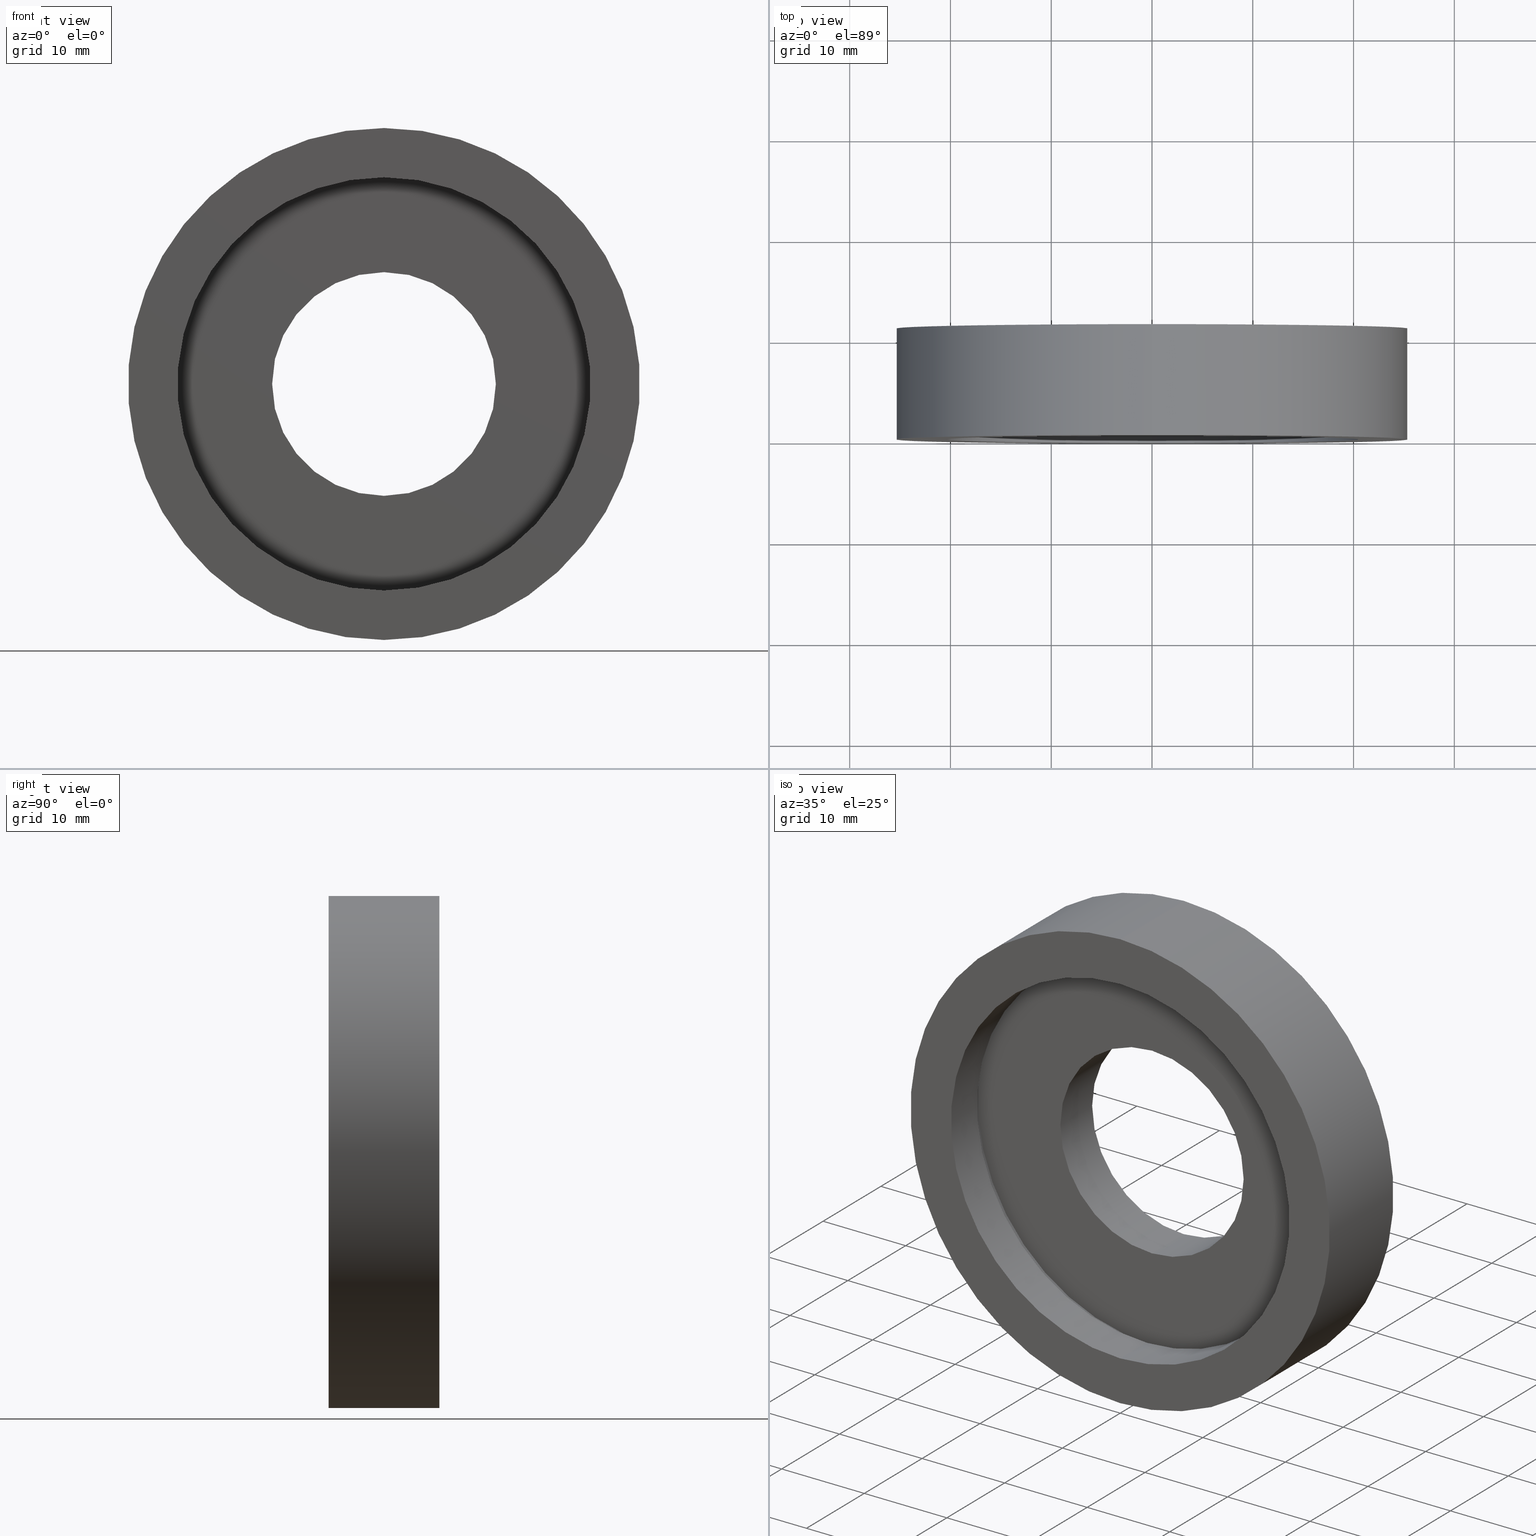
[diagram: canonical four-view strip — front | top / right | iso, engineering-drawing reading convention]
A machine part, canonical four-view strip (front | top / right | iso — engineering-drawing reading convention). The complete STEP part file that produces these views, byte-faithful:
ISO-10303-21;
HEADER;
FILE_DESCRIPTION (( 'STEP AP214' ),
    '1' );
FILE_NAME ('504045.STEP',
    '2019-10-09T06:09:52',
    ( 'user' ),
    ( '΢���й�' ),
    'SwSTEP 2.0',
    'SolidWorks 2016',
    '' );
FILE_SCHEMA (( 'AUTOMOTIVE_DESIGN' ));
ENDSEC;

DATA;
#1 = DIRECTION ( 'NONE',  ( 0.0000000000000000000, 0.0000000000000000000, 1.000000000000000000 ) ) ;
#2 = STYLED_ITEM ( 'NONE', ( #430 ), #5 ) ;
#3 = ADVANCED_FACE ( 'NONE', ( #155 ), #338, .T. ) ;
#4 = ADVANCED_FACE ( 'NONE', ( #252 ), #121, .F. ) ;
#5 = ADVANCED_FACE ( 'NONE', ( #68 ), #136, .F. ) ;
#6 = APPLICATION_CONTEXT ( 'automotive_design' ) ;
#7 =( NAMED_UNIT ( * ) SI_UNIT ( $, .STERADIAN. ) SOLID_ANGLE_UNIT ( ) );
#8 = CYLINDRICAL_SURFACE ( 'NONE', #61, 11.10000000000000500 ) ;
#9 = LINE ( 'NONE', #397, #364 ) ;
#10 = DIRECTION ( 'NONE',  ( 0.0000000000000000000, -1.000000000000000000, 0.0000000000000000000 ) ) ;
#11 = CARTESIAN_POINT ( 'NONE',  ( 2.584004746200916200E-015, 5.499999999999998200, -21.10000000000000900 ) ) ;
#12 = PRESENTATION_LAYER_ASSIGNMENT (  '', '', ( #427 ) ) ;
#13 = ADVANCED_FACE ( 'NONE', ( #104, #371 ), #147, .F. ) ;
#14 = CARTESIAN_POINT ( 'NONE',  ( 0.0000000000000000000, 60.02082041425541100, 0.0000000000000000000 ) ) ;
#15 = ORIENTED_EDGE ( 'NONE', *, *, #139, .F. ) ;
#16 = DIRECTION ( 'NONE',  ( -0.0000000000000000000, 1.000000000000000000, -0.0000000000000000000 ) ) ;
#17 = DIRECTION ( 'NONE',  ( -0.0000000000000000000, 1.000000000000000000, 0.0000000000000000000 ) ) ;
#18 = DIRECTION ( 'NONE',  ( 0.0000000000000000000, 0.0000000000000000000, 1.000000000000000000 ) ) ;
#19 = CIRCLE ( 'NONE', #52, 11.10000000000000700 ) ;
#20 = COLOUR_RGB ( '',1.000000000000000000, 1.000000000000000000, 1.000000000000000000 ) ;
#21 = VERTEX_POINT ( 'NONE', #384 ) ;
#22 =( GEOMETRIC_REPRESENTATION_CONTEXT ( 3 ) GLOBAL_UNCERTAINTY_ASSIGNED_CONTEXT ( ( #360 ) ) GLOBAL_UNIT_ASSIGNED_CONTEXT ( ( #152, #273, #271 ) ) REPRESENTATION_CONTEXT ( 'NONE', 'WORKASPACE' ) );
#23 = AXIS2_PLACEMENT_3D ( 'NONE', #37, #196, #148 ) ;
#24 = VECTOR ( 'NONE', #281, 1000.000000000000000 ) ;
#25 = ORIENTED_EDGE ( 'NONE', *, *, #263, .F. ) ;
#26 = AXIS2_PLACEMENT_3D ( 'NONE', #393, #123, #116 ) ;
#27 = VECTOR ( 'NONE', #204, 1000.000000000000000 ) ;
#28 = CARTESIAN_POINT ( 'NONE',  ( 3.110602869834277300E-015, 10.99999999999999600, -25.40000000000000200 ) ) ;
#29 = EDGE_CURVE ( 'NONE', #130, #34, #366, .T. ) ;
#30 = FILL_AREA_STYLE_COLOUR ( '', #241 ) ;
#31 = ORIENTED_EDGE ( 'NONE', *, *, #263, .T. ) ;
#32 = PLANE ( 'NONE',  #56 ) ;
#33 = DIRECTION ( 'NONE',  ( -0.0000000000000000000, 1.000000000000000000, -0.0000000000000000000 ) ) ;
#34 = VERTEX_POINT ( 'NONE', #28 ) ;
#35 = DIRECTION ( 'NONE',  ( -0.0000000000000000000, 1.000000000000000000, -0.0000000000000000000 ) ) ;
#36 = SURFACE_STYLE_USAGE ( .BOTH. , #108 ) ;
#37 = CARTESIAN_POINT ( 'NONE',  ( 0.0000000000000000000, 0.0000000000000000000, 0.0000000000000000000 ) ) ;
#38 = AXIS2_PLACEMENT_3D ( 'NONE', #310, #309, #188 ) ;
#39 = EDGE_CURVE ( 'NONE', #433, #313, #342, .T. ) ;
#40 = PLANE ( 'NONE',  #272 ) ;
#41 = DIRECTION ( 'NONE',  ( 0.0000000000000000000, 0.0000000000000000000, 1.000000000000000000 ) ) ;
#42 = AXIS2_PLACEMENT_3D ( 'NONE', #227, #264, #336 ) ;
#43 =( NAMED_UNIT ( * ) SI_UNIT ( $, .STERADIAN. ) SOLID_ANGLE_UNIT ( ) );
#44 = ORIENTED_EDGE ( 'NONE', *, *, #390, .F. ) ;
#45 = LINE ( 'NONE', #69, #24 ) ;
#46 = ORIENTED_EDGE ( 'NONE', *, *, #66, .F. ) ;
#47 = EDGE_LOOP ( 'NONE', ( #73, #304, #216, #31 ) ) ;
#48 = DIRECTION ( 'NONE',  ( -0.0000000000000000000, 1.000000000000000000, -0.0000000000000000000 ) ) ;
#49 = DIRECTION ( 'NONE',  ( -0.0000000000000000000, 1.000000000000000000, -0.0000000000000000000 ) ) ;
#50 = CARTESIAN_POINT ( 'NONE',  ( 1.359357947053563100E-015, 10.99999999999999600, -11.10000000000000700 ) ) ;
#51 = CARTESIAN_POINT ( 'NONE',  ( 0.0000000000000000000, 10.99999999999999600, 0.0000000000000000000 ) ) ;
#52 = AXIS2_PLACEMENT_3D ( 'NONE', #51, #399, #18 ) ;
#53 = CIRCLE ( 'NONE', #213, 20.50000000000000700 ) ;
#54 = FILL_AREA_STYLE ('',( #164 ) ) ;
#55 =( LENGTH_UNIT ( ) NAMED_UNIT ( * ) SI_UNIT ( .MILLI., .METRE. ) );
#56 = AXIS2_PLACEMENT_3D ( 'NONE', #107, #119, #198 ) ;
#57 = AXIS2_PLACEMENT_3D ( 'NONE', #140, #353, #345 ) ;
#58 = ORIENTED_EDGE ( 'NONE', *, *, #431, .F. ) ;
#59 = AXIS2_PLACEMENT_3D ( 'NONE', #157, #153, #239 ) ;
#60 = DIRECTION ( 'NONE',  ( 0.0000000000000000000, 0.0000000000000000000, 1.000000000000000000 ) ) ;
#61 = AXIS2_PLACEMENT_3D ( 'NONE', #317, #154, #351 ) ;
#62 = AXIS2_PLACEMENT_3D ( 'NONE', #340, #207, #63 ) ;
#63 = DIRECTION ( 'NONE',  ( 0.0000000000000000000, 0.0000000000000000000, 1.000000000000000000 ) ) ;
#64 =( NAMED_UNIT ( * ) SI_UNIT ( $, .STERADIAN. ) SOLID_ANGLE_UNIT ( ) );
#65 = CARTESIAN_POINT ( 'NONE',  ( 0.0000000000000000000, 5.499999999999998200, 0.0000000000000000000 ) ) ;
#66 = EDGE_CURVE ( 'NONE', #192, #173, #9, .T. ) ;
#67 = CARTESIAN_POINT ( 'NONE',  ( 0.0000000000000000000, 10.99999999999999600, 0.0000000000000000000 ) ) ;
#68 = FACE_OUTER_BOUND ( 'NONE', #386, .T. ) ;
#69 = CARTESIAN_POINT ( 'NONE',  ( 0.0000000000000000000, 60.02082041425541100, 21.10000000000000900 ) ) ;
#70 =( NAMED_UNIT ( * ) SI_UNIT ( $, .STERADIAN. ) SOLID_ANGLE_UNIT ( ) );
#71 = SURFACE_STYLE_FILL_AREA ( #54 ) ;
#72 = EDGE_LOOP ( 'NONE', ( #58, #238, #156, #46 ) ) ;
#73 = ORIENTED_EDGE ( 'NONE', *, *, #412, .F. ) ;
#74 = CARTESIAN_POINT ( 'NONE',  ( 20.50000000000000700, 4.499999999999999100, 0.0000000000000000000 ) ) ;
#75 = MANIFOLD_SOLID_BREP ( '��ת1', #308 ) ;
#76 = PRODUCT_DEFINITION ( 'δ֪', '', #83, #291 ) ;
#77 = MECHANICAL_DESIGN_GEOMETRIC_PRESENTATION_REPRESENTATION (  '', ( #427 ), #318 ) ;
#78 = DIRECTION ( 'NONE',  ( 0.0000000000000000000, 0.0000000000000000000, 1.000000000000000000 ) ) ;
#79 = SHAPE_DEFINITION_REPRESENTATION ( #403, #411 ) ;
#80 = FACE_OUTER_BOUND ( 'NONE', #328, .T. ) ;
#81 = CIRCLE ( 'NONE', #42, 25.40000000000000200 ) ;
#82 = SURFACE_STYLE_USAGE ( .BOTH. , #105 ) ;
#83 = PRODUCT_DEFINITION_FORMATION_WITH_SPECIFIED_SOURCE ( '�κ�', '', #374, .NOT_KNOWN. ) ;
#84 = AXIS2_PLACEMENT_3D ( 'NONE', #209, #362, #319 ) ;
#85 = DIRECTION ( 'NONE',  ( 0.0000000000000000000, 0.0000000000000000000, 1.000000000000000000 ) ) ;
#86 = VECTOR ( 'NONE', #242, 1000.000000000000000 ) ;
#87 = EDGE_LOOP ( 'NONE', ( #161, #15 ) ) ;
#88 =( GEOMETRIC_REPRESENTATION_CONTEXT ( 3 ) GLOBAL_UNCERTAINTY_ASSIGNED_CONTEXT ( ( #333 ) ) GLOBAL_UNIT_ASSIGNED_CONTEXT ( ( #246, #284, #396 ) ) REPRESENTATION_CONTEXT ( 'NONE', 'WORKASPACE' ) );
#89 = ORIENTED_EDGE ( 'NONE', *, *, #390, .T. ) ;
#90 = DIRECTION ( 'NONE',  ( -0.0000000000000000000, 1.000000000000000000, -0.0000000000000000000 ) ) ;
#91 = LINE ( 'NONE', #208, #86 ) ;
#92 = SURFACE_STYLE_FILL_AREA ( #185 ) ;
#93 = CARTESIAN_POINT ( 'NONE',  ( 3.110602869834277300E-015, 60.02082041425541100, -25.40000000000000200 ) ) ;
#94 = ORIENTED_EDGE ( 'NONE', *, *, #370, .T. ) ;
#95 = CARTESIAN_POINT ( 'NONE',  ( 0.0000000000000000000, 5.499999999999998200, 11.10000000000000500 ) ) ;
#96 = CARTESIAN_POINT ( 'NONE',  ( 0.0000000000000000000, 4.499999999999997300, 0.0000000000000000000 ) ) ;
#97 = MECHANICAL_DESIGN_GEOMETRIC_PRESENTATION_REPRESENTATION (  '', ( #2 ), #221 ) ;
#98 = ORIENTED_EDGE ( 'NONE', *, *, #370, .F. ) ;
#99 = CARTESIAN_POINT ( 'NONE',  ( 25.40000000000000200, -3.000384657911011900E-016, 0.0000000000000000000 ) ) ;
#100 = STYLED_ITEM ( 'NONE', ( #151 ), #75 ) ;
#101 = COLOUR_RGB ( '',1.000000000000000000, 1.000000000000000000, 1.000000000000000000 ) ;
#102 = EDGE_LOOP ( 'NONE', ( #223, #94 ) ) ;
#103 = FACE_OUTER_BOUND ( 'NONE', #102, .T. ) ;
#104 = FACE_OUTER_BOUND ( 'NONE', #289, .T. ) ;
#105 = SURFACE_SIDE_STYLE ('',( #71 ) ) ;
#106 = AXIS2_PLACEMENT_3D ( 'NONE', #67, #195, #41 ) ;
#107 = CARTESIAN_POINT ( 'NONE',  ( 11.10000000000000700, 10.99999999999999800, 0.0000000000000000000 ) ) ;
#108 = SURFACE_SIDE_STYLE ('',( #92 ) ) ;
#109 = PRESENTATION_LAYER_ASSIGNMENT (  '', '', ( #2 ) ) ;
#110 = DIRECTION ( 'NONE',  ( 0.0000000000000000000, 0.0000000000000000000, 1.000000000000000000 ) ) ;
#111 = CARTESIAN_POINT ( 'NONE',  ( 3.110602869834277300E-015, 0.0000000000000000000, -25.40000000000000200 ) ) ;
#112 = PRESENTATION_LAYER_ASSIGNMENT (  '', '', ( #324 ) ) ;
#113 = ORIENTED_EDGE ( 'NONE', *, *, #405, .F. ) ;
#114 = PRODUCT_CONTEXT ( 'NONE', #6, 'mechanical' ) ;
#115 = CARTESIAN_POINT ( 'NONE',  ( 0.0000000000000000000, 10.99999999999999600, 11.10000000000000700 ) ) ;
#116 = DIRECTION ( 'NONE',  ( 0.0000000000000000000, 0.0000000000000000000, 1.000000000000000000 ) ) ;
#117 = AXIS2_PLACEMENT_3D ( 'NONE', #361, #163, #60 ) ;
#118 = UNCERTAINTY_MEASURE_WITH_UNIT (LENGTH_MEASURE( 1.000000000000000100E-005 ), #55, 'distance_accuracy_value', 'NONE');
#119 = DIRECTION ( 'NONE',  ( 0.0000000000000000000, -1.000000000000000000, 0.0000000000000000000 ) ) ;
#120 = CIRCLE ( 'NONE', #106, 25.40000000000000200 ) ;
#121 = CYLINDRICAL_SURFACE ( 'NONE', #125, 11.10000000000000500 ) ;
#122 = VERTEX_POINT ( 'NONE', #406 ) ;
#123 = DIRECTION ( 'NONE',  ( -0.0000000000000000000, 1.000000000000000000, -0.0000000000000000000 ) ) ;
#124 = AXIS2_PLACEMENT_3D ( 'NONE', #226, #402, #394 ) ;
#125 = AXIS2_PLACEMENT_3D ( 'NONE', #14, #16, #222 ) ;
#126 = EDGE_LOOP ( 'NONE', ( #296, #391, #210, #132 ) ) ;
#127 =( LENGTH_UNIT ( ) NAMED_UNIT ( * ) SI_UNIT ( .MILLI., .METRE. ) );
#128 = DIRECTION ( 'NONE',  ( -0.0000000000000000000, 1.000000000000000000, -0.0000000000000000000 ) ) ;
#129 = EDGE_CURVE ( 'NONE', #408, #244, #260, .T. ) ;
#130 = VERTEX_POINT ( 'NONE', #111 ) ;
#131 = ORIENTED_EDGE ( 'NONE', *, *, #158, .T. ) ;
#132 = ORIENTED_EDGE ( 'NONE', *, *, #165, .T. ) ;
#133 = EDGE_CURVE ( 'NONE', #192, #21, #350, .T. ) ;
#134 = SURFACE_STYLE_USAGE ( .BOTH. , #247 ) ;
#135 = DIRECTION ( 'NONE',  ( 0.0000000000000000000, 0.0000000000000000000, 1.000000000000000000 ) ) ;
#136 = CYLINDRICAL_SURFACE ( 'NONE', #84, 20.50000000000000700 ) ;
#137 = LINE ( 'NONE', #401, #348 ) ;
#138 = PRESENTATION_LAYER_ASSIGNMENT (  '', '', ( #217 ) ) ;
#139 = EDGE_CURVE ( 'NONE', #122, #315, #53, .T. ) ;
#140 = CARTESIAN_POINT ( 'NONE',  ( 0.0000000000000000000, 0.0000000000000000000, 0.0000000000000000000 ) ) ;
#141 = DIRECTION ( 'NONE',  ( 0.0000000000000000000, 0.0000000000000000000, 1.000000000000000000 ) ) ;
#142 = DIRECTION ( 'NONE',  ( -0.0000000000000000000, 1.000000000000000000, -0.0000000000000000000 ) ) ;
#143 = ADVANCED_FACE ( 'NONE', ( #413, #103 ), #32, .F. ) ;
#144 = CARTESIAN_POINT ( 'NONE',  ( 0.0000000000000000000, 0.0000000000000000000, 25.40000000000000200 ) ) ;
#145 = COLOUR_RGB ( '',1.000000000000000000, 1.000000000000000000, 1.000000000000000000 ) ;
#146 = PRODUCT_RELATED_PRODUCT_CATEGORY ( 'part', '', ( #374 ) ) ;
#147 = PLANE ( 'NONE',  #292 ) ;
#148 = DIRECTION ( 'NONE',  ( 0.0000000000000000000, 0.0000000000000000000, 1.000000000000000000 ) ) ;
#149 = SURFACE_STYLE_FILL_AREA ( #205 ) ;
#150 = ORIENTED_EDGE ( 'NONE', *, *, #129, .T. ) ;
#151 = PRESENTATION_STYLE_ASSIGNMENT (( #134 ) ) ;
#152 =( LENGTH_UNIT ( ) NAMED_UNIT ( * ) SI_UNIT ( .MILLI., .METRE. ) );
#153 = DIRECTION ( 'NONE',  ( -0.0000000000000000000, 1.000000000000000000, -0.0000000000000000000 ) ) ;
#154 = DIRECTION ( 'NONE',  ( -0.0000000000000000000, 1.000000000000000000, -0.0000000000000000000 ) ) ;
#155 = FACE_OUTER_BOUND ( 'NONE', #220, .T. ) ;
#156 = ORIENTED_EDGE ( 'NONE', *, *, #285, .T. ) ;
#157 = CARTESIAN_POINT ( 'NONE',  ( 0.0000000000000000000, 4.499999999999997300, 0.0000000000000000000 ) ) ;
#158 = EDGE_CURVE ( 'NONE', #305, #290, #202, .T. ) ;
#159 = EDGE_LOOP ( 'NONE', ( #25, #178 ) ) ;
#160 =( NAMED_UNIT ( * ) PLANE_ANGLE_UNIT ( ) SI_UNIT ( $, .RADIAN. ) );
#161 = ORIENTED_EDGE ( 'NONE', *, *, #240, .F. ) ;
#162 = FILL_AREA_STYLE_COLOUR ( '', #20 ) ;
#163 = DIRECTION ( 'NONE',  ( -0.0000000000000000000, 1.000000000000000000, -0.0000000000000000000 ) ) ;
#164 = FILL_AREA_STYLE_COLOUR ( '', #101 ) ;
#165 = EDGE_CURVE ( 'NONE', #173, #307, #416, .T. ) ;
#166 = PRESENTATION_STYLE_ASSIGNMENT (( #428 ) ) ;
#167 = ORIENTED_EDGE ( 'NONE', *, *, #431, .T. ) ;
#168 = APPLICATION_CONTEXT ( 'automotive_design' ) ;
#169 = ORIENTED_EDGE ( 'NONE', *, *, #133, .T. ) ;
#170 = ORIENTED_EDGE ( 'NONE', *, *, #240, .T. ) ;
#171 = CARTESIAN_POINT ( 'NONE',  ( 0.0000000000000000000, 10.99999999999999600, 25.40000000000000200 ) ) ;
#172 = EDGE_CURVE ( 'NONE', #130, #433, #81, .T. ) ;
#173 = VERTEX_POINT ( 'NONE', #115 ) ;
#174 = ORIENTED_EDGE ( 'NONE', *, *, #139, .T. ) ;
#175 = SURFACE_STYLE_USAGE ( .BOTH. , #432 ) ;
#176 = CYLINDRICAL_SURFACE ( 'NONE', #332, 21.10000000000000900 ) ;
#177 = AXIS2_PLACEMENT_3D ( 'NONE', #65, #237, #248 ) ;
#178 = ORIENTED_EDGE ( 'NONE', *, *, #344, .F. ) ;
#179 = CARTESIAN_POINT ( 'NONE',  ( 0.0000000000000000000, 10.99999999999999600, 0.0000000000000000000 ) ) ;
#180 = APPLICATION_PROTOCOL_DEFINITION ( 'draft international standard', 'automotive_design', 1998, #168 ) ;
#181 = CIRCLE ( 'NONE', #38, 25.40000000000000200 ) ;
#182 = ORIENTED_EDGE ( 'NONE', *, *, #412, .T. ) ;
#183 = CARTESIAN_POINT ( 'NONE',  ( 0.0000000000000000000, 60.02082041425541100, 25.40000000000000200 ) ) ;
#184 =( LENGTH_UNIT ( ) NAMED_UNIT ( * ) SI_UNIT ( .MILLI., .METRE. ) );
#185 = FILL_AREA_STYLE ('',( #30 ) ) ;
#186 = UNCERTAINTY_MEASURE_WITH_UNIT (LENGTH_MEASURE( 1.000000000000000100E-005 ), #184, 'distance_accuracy_value', 'NONE');
#187 = EDGE_LOOP ( 'NONE', ( #199, #182, #302, #113 ) ) ;
#188 = DIRECTION ( 'NONE',  ( 0.0000000000000000000, 0.0000000000000000000, 1.000000000000000000 ) ) ;
#189 = FILL_AREA_STYLE_COLOUR ( '', #419 ) ;
#190 = CIRCLE ( 'NONE', #177, 11.10000000000000500 ) ;
#191 = EDGE_LOOP ( 'NONE', ( #131, #378 ) ) ;
#192 = VERTEX_POINT ( 'NONE', #95 ) ;
#193 = EDGE_CURVE ( 'NONE', #313, #34, #120, .T. ) ;
#194 = AXIS2_PLACEMENT_3D ( 'NONE', #426, #49, #258 ) ;
#195 = DIRECTION ( 'NONE',  ( -0.0000000000000000000, 1.000000000000000000, -0.0000000000000000000 ) ) ;
#196 = DIRECTION ( 'NONE',  ( -0.0000000000000000000, 1.000000000000000000, -0.0000000000000000000 ) ) ;
#197 = COLOUR_RGB ( '',1.000000000000000000, 1.000000000000000000, 1.000000000000000000 ) ;
#198 = DIRECTION ( 'NONE',  ( 0.0000000000000000000, -0.0000000000000000000, -1.000000000000000000 ) ) ;
#199 = ORIENTED_EDGE ( 'NONE', *, *, #314, .F. ) ;
#200 = CARTESIAN_POINT ( 'NONE',  ( 0.0000000000000000000, 5.499999999999998200, 0.0000000000000000000 ) ) ;
#201 = PLANE ( 'NONE',  #287 ) ;
#202 = CIRCLE ( 'NONE', #59, 21.10000000000000900 ) ;
#203 = EDGE_LOOP ( 'NONE', ( #269, #299, #261, #256 ) ) ;
#204 = DIRECTION ( 'NONE',  ( -0.0000000000000000000, 1.000000000000000000, -0.0000000000000000000 ) ) ;
#205 = FILL_AREA_STYLE ('',( #162 ) ) ;
#206 = LINE ( 'NONE', #279, #429 ) ;
#207 = DIRECTION ( 'NONE',  ( -0.0000000000000000000, 1.000000000000000000, -0.0000000000000000000 ) ) ;
#208 = CARTESIAN_POINT ( 'NONE',  ( 1.359357947053562700E-015, 60.02082041425541100, -11.10000000000000500 ) ) ;
#209 = CARTESIAN_POINT ( 'NONE',  ( 0.0000000000000000000, 60.02082041425541100, 0.0000000000000000000 ) ) ;
#210 = ORIENTED_EDGE ( 'NONE', *, *, #66, .T. ) ;
#211 = FILL_AREA_STYLE_COLOUR ( '', #197 ) ;
#212 = CARTESIAN_POINT ( 'NONE',  ( 21.10000000000000900, 5.499999999999998200, 0.0000000000000000000 ) ) ;
#213 = AXIS2_PLACEMENT_3D ( 'NONE', #214, #35, #78 ) ;
#214 = CARTESIAN_POINT ( 'NONE',  ( 0.0000000000000000000, 4.499999999999997300, 0.0000000000000000000 ) ) ;
#215 = FACE_OUTER_BOUND ( 'NONE', #159, .T. ) ;
#216 = ORIENTED_EDGE ( 'NONE', *, *, #405, .T. ) ;
#217 = STYLED_ITEM ( 'NONE', ( #230 ), #4 ) ;
#218 =( NAMED_UNIT ( * ) PLANE_ANGLE_UNIT ( ) SI_UNIT ( $, .RADIAN. ) );
#219 = CIRCLE ( 'NONE', #117, 20.50000000000000700 ) ;
#220 = EDGE_LOOP ( 'NONE', ( #349, #325, #225, #98 ) ) ;
#221 =( GEOMETRIC_REPRESENTATION_CONTEXT ( 3 ) GLOBAL_UNCERTAINTY_ASSIGNED_CONTEXT ( ( #234 ) ) GLOBAL_UNIT_ASSIGNED_CONTEXT ( ( #381, #283, #43 ) ) REPRESENTATION_CONTEXT ( 'NONE', 'WORKASPACE' ) );
#222 = DIRECTION ( 'NONE',  ( 0.0000000000000000000, 0.0000000000000000000, 1.000000000000000000 ) ) ;
#223 = ORIENTED_EDGE ( 'NONE', *, *, #193, .T. ) ;
#224 = MECHANICAL_DESIGN_GEOMETRIC_PRESENTATION_REPRESENTATION (  '', ( #324 ), #22 ) ;
#225 = ORIENTED_EDGE ( 'NONE', *, *, #39, .T. ) ;
#226 = CARTESIAN_POINT ( 'NONE',  ( 0.0000000000000000000, 0.0000000000000000000, 0.0000000000000000000 ) ) ;
#227 = CARTESIAN_POINT ( 'NONE',  ( 0.0000000000000000000, 0.0000000000000000000, 0.0000000000000000000 ) ) ;
#228 = AXIS2_PLACEMENT_3D ( 'NONE', #200, #142, #110 ) ;
#229 = CIRCLE ( 'NONE', #347, 21.10000000000000900 ) ;
#230 = PRESENTATION_STYLE_ASSIGNMENT (( #36 ) ) ;
#231 = CARTESIAN_POINT ( 'NONE',  ( 0.0000000000000000000, 5.499999999999998200, 0.0000000000000000000 ) ) ;
#232 = DIRECTION ( 'NONE',  ( -0.0000000000000000000, 1.000000000000000000, -0.0000000000000000000 ) ) ;
#233 = APPLICATION_PROTOCOL_DEFINITION ( 'draft international standard', 'automotive_design', 1998, #6 ) ;
#234 = UNCERTAINTY_MEASURE_WITH_UNIT (LENGTH_MEASURE( 1.000000000000000100E-005 ), #381, 'distance_accuracy_value', 'NONE');
#235 = MECHANICAL_DESIGN_GEOMETRIC_PRESENTATION_REPRESENTATION (  '', ( #245 ), #254 ) ;
#236 = CYLINDRICAL_SURFACE ( 'NONE', #383, 21.10000000000000900 ) ;
#237 = DIRECTION ( 'NONE',  ( -0.0000000000000000000, 1.000000000000000000, -0.0000000000000000000 ) ) ;
#238 = ORIENTED_EDGE ( 'NONE', *, *, #346, .T. ) ;
#239 = DIRECTION ( 'NONE',  ( 0.0000000000000000000, 0.0000000000000000000, 1.000000000000000000 ) ) ;
#240 = EDGE_CURVE ( 'NONE', #315, #122, #219, .T. ) ;
#241 = COLOUR_RGB ( '',1.000000000000000000, 1.000000000000000000, 1.000000000000000000 ) ;
#242 = DIRECTION ( 'NONE',  ( -0.0000000000000000000, 1.000000000000000000, -0.0000000000000000000 ) ) ;
#243 = FILL_AREA_STYLE_COLOUR ( '', #145 ) ;
#244 = VERTEX_POINT ( 'NONE', #358 ) ;
#245 = STYLED_ITEM ( 'NONE', ( #409 ), #411 ) ;
#246 =( LENGTH_UNIT ( ) NAMED_UNIT ( * ) SI_UNIT ( .MILLI., .METRE. ) );
#247 = SURFACE_SIDE_STYLE ('',( #357 ) ) ;
#248 = DIRECTION ( 'NONE',  ( 0.0000000000000000000, 0.0000000000000000000, 1.000000000000000000 ) ) ;
#249 = CARTESIAN_POINT ( 'NONE',  ( 0.0000000000000000000, 4.499999999999997300, 21.10000000000000900 ) ) ;
#250 = FACE_BOUND ( 'NONE', #282, .T. ) ;
#251 = EDGE_LOOP ( 'NONE', ( #330, #377 ) ) ;
#252 = FACE_OUTER_BOUND ( 'NONE', #126, .T. ) ;
#253 =( NAMED_UNIT ( * ) PLANE_ANGLE_UNIT ( ) SI_UNIT ( $, .RADIAN. ) );
#254 =( GEOMETRIC_REPRESENTATION_CONTEXT ( 3 ) GLOBAL_UNCERTAINTY_ASSIGNED_CONTEXT ( ( #186 ) ) GLOBAL_UNIT_ASSIGNED_CONTEXT ( ( #184, #160, #321 ) ) REPRESENTATION_CONTEXT ( 'NONE', 'WORKASPACE' ) );
#255 = AXIS2_PLACEMENT_3D ( 'NONE', #179, #48, #85 ) ;
#256 = ORIENTED_EDGE ( 'NONE', *, *, #39, .F. ) ;
#257 = AXIS2_PLACEMENT_3D ( 'NONE', #367, #128, #417 ) ;
#258 = DIRECTION ( 'NONE',  ( 0.0000000000000000000, 0.0000000000000000000, 1.000000000000000000 ) ) ;
#259 = CIRCLE ( 'NONE', #124, 25.40000000000000200 ) ;
#260 = CIRCLE ( 'NONE', #380, 20.50000000000000700 ) ;
#261 = ORIENTED_EDGE ( 'NONE', *, *, #193, .F. ) ;
#262 =( NAMED_UNIT ( * ) PLANE_ANGLE_UNIT ( ) SI_UNIT ( $, .RADIAN. ) );
#263 = EDGE_CURVE ( 'NONE', #280, #298, #359, .T. ) ;
#264 = DIRECTION ( 'NONE',  ( -0.0000000000000000000, 1.000000000000000000, -0.0000000000000000000 ) ) ;
#265 = SURFACE_STYLE_FILL_AREA ( #277 ) ;
#266 =( GEOMETRIC_REPRESENTATION_CONTEXT ( 3 ) GLOBAL_UNCERTAINTY_ASSIGNED_CONTEXT ( ( #369 ) ) GLOBAL_UNIT_ASSIGNED_CONTEXT ( ( #127, #253, #70 ) ) REPRESENTATION_CONTEXT ( 'NONE', 'WORKASPACE' ) );
#267 = ADVANCED_FACE ( 'NONE', ( #294 ), #8, .F. ) ;
#268 = FACE_BOUND ( 'NONE', #87, .T. ) ;
#269 = ORIENTED_EDGE ( 'NONE', *, *, #355, .T. ) ;
#270 = EDGE_LOOP ( 'NONE', ( #150, #306 ) ) ;
#271 =( NAMED_UNIT ( * ) SI_UNIT ( $, .STERADIAN. ) SOLID_ANGLE_UNIT ( ) );
#272 = AXIS2_PLACEMENT_3D ( 'NONE', #74, #10, #335 ) ;
#273 =( NAMED_UNIT ( * ) PLANE_ANGLE_UNIT ( ) SI_UNIT ( $, .RADIAN. ) );
#274 = CIRCLE ( 'NONE', #23, 20.50000000000000700 ) ;
#275 = ORIENTED_EDGE ( 'NONE', *, *, #172, .F. ) ;
#276 = ORIENTED_EDGE ( 'NONE', *, *, #355, .F. ) ;
#277 = FILL_AREA_STYLE ('',( #189 ) ) ;
#278 = FACE_OUTER_BOUND ( 'NONE', #47, .T. ) ;
#279 = CARTESIAN_POINT ( 'NONE',  ( 0.0000000000000000000, 60.02082041425541100, 20.50000000000000700 ) ) ;
#280 = VERTEX_POINT ( 'NONE', #398 ) ;
#281 = DIRECTION ( 'NONE',  ( -0.0000000000000000000, 1.000000000000000000, -0.0000000000000000000 ) ) ;
#282 = EDGE_LOOP ( 'NONE', ( #169, #167 ) ) ;
#283 =( NAMED_UNIT ( * ) PLANE_ANGLE_UNIT ( ) SI_UNIT ( $, .RADIAN. ) );
#284 =( NAMED_UNIT ( * ) PLANE_ANGLE_UNIT ( ) SI_UNIT ( $, .RADIAN. ) );
#285 = EDGE_CURVE ( 'NONE', #307, #173, #19, .T. ) ;
#286 = DIRECTION ( 'NONE',  ( -0.0000000000000000000, 1.000000000000000000, -0.0000000000000000000 ) ) ;
#287 = AXIS2_PLACEMENT_3D ( 'NONE', #212, #323, #300 ) ;
#288 = DIRECTION ( 'NONE',  ( -0.0000000000000000000, 1.000000000000000000, -0.0000000000000000000 ) ) ;
#289 = EDGE_LOOP ( 'NONE', ( #276, #275 ) ) ;
#290 = VERTEX_POINT ( 'NONE', #434 ) ;
#291 = PRODUCT_DEFINITION_CONTEXT ( 'detailed design', #168, 'design' ) ;
#292 = AXIS2_PLACEMENT_3D ( 'NONE', #99, #17, #320 ) ;
#293 = SURFACE_STYLE_USAGE ( .BOTH. , #421 ) ;
#294 = FACE_OUTER_BOUND ( 'NONE', #72, .T. ) ;
#295 = SURFACE_STYLE_FILL_AREA ( #341 ) ;
#296 = ORIENTED_EDGE ( 'NONE', *, *, #346, .F. ) ;
#297 = PRESENTATION_LAYER_ASSIGNMENT (  '', '', ( #100 ) ) ;
#298 = VERTEX_POINT ( 'NONE', #11 ) ;
#299 = ORIENTED_EDGE ( 'NONE', *, *, #29, .T. ) ;
#300 = DIRECTION ( 'NONE',  ( 0.0000000000000000000, 0.0000000000000000000, 1.000000000000000000 ) ) ;
#301 = EDGE_CURVE ( 'NONE', #244, #408, #274, .T. ) ;
#302 = ORIENTED_EDGE ( 'NONE', *, *, #344, .T. ) ;
#303 = VECTOR ( 'NONE', #33, 1000.000000000000000 ) ;
#304 = ORIENTED_EDGE ( 'NONE', *, *, #158, .F. ) ;
#305 = VERTEX_POINT ( 'NONE', #249 ) ;
#306 = ORIENTED_EDGE ( 'NONE', *, *, #301, .T. ) ;
#307 = VERTEX_POINT ( 'NONE', #50 ) ;
#308 = CLOSED_SHELL ( 'NONE', ( #372, #267, #327, #415, #13, #5, #322, #407, #382, #4, #143, #3 ) ) ;
#309 = DIRECTION ( 'NONE',  ( -0.0000000000000000000, 1.000000000000000000, -0.0000000000000000000 ) ) ;
#310 = CARTESIAN_POINT ( 'NONE',  ( 0.0000000000000000000, 10.99999999999999600, 0.0000000000000000000 ) ) ;
#311 = CYLINDRICAL_SURFACE ( 'NONE', #194, 20.50000000000000700 ) ;
#312 = PRESENTATION_STYLE_ASSIGNMENT (( #175 ) ) ;
#313 = VERTEX_POINT ( 'NONE', #171 ) ;
#314 = EDGE_CURVE ( 'NONE', #290, #305, #376, .T. ) ;
#315 = VERTEX_POINT ( 'NONE', #368 ) ;
#316 = ORIENTED_EDGE ( 'NONE', *, *, #301, .F. ) ;
#317 = CARTESIAN_POINT ( 'NONE',  ( 0.0000000000000000000, 60.02082041425541100, 0.0000000000000000000 ) ) ;
#318 =( GEOMETRIC_REPRESENTATION_CONTEXT ( 3 ) GLOBAL_UNCERTAINTY_ASSIGNED_CONTEXT ( ( #389 ) ) GLOBAL_UNIT_ASSIGNED_CONTEXT ( ( #425, #218, #64 ) ) REPRESENTATION_CONTEXT ( 'NONE', 'WORKASPACE' ) );
#319 = DIRECTION ( 'NONE',  ( 0.0000000000000000000, 0.0000000000000000000, 1.000000000000000000 ) ) ;
#320 = DIRECTION ( 'NONE',  ( 0.0000000000000000000, 0.0000000000000000000, 1.000000000000000000 ) ) ;
#321 =( NAMED_UNIT ( * ) SI_UNIT ( $, .STERADIAN. ) SOLID_ANGLE_UNIT ( ) );
#322 = ADVANCED_FACE ( 'NONE', ( #268, #363 ), #40, .F. ) ;
#323 = DIRECTION ( 'NONE',  ( -0.0000000000000000000, 1.000000000000000000, 0.0000000000000000000 ) ) ;
#324 = STYLED_ITEM ( 'NONE', ( #166 ), #415 ) ;
#325 = ORIENTED_EDGE ( 'NONE', *, *, #172, .T. ) ;
#326 = FILL_AREA_STYLE ('',( #243 ) ) ;
#327 = ADVANCED_FACE ( 'NONE', ( #337 ), #176, .F. ) ;
#328 = EDGE_LOOP ( 'NONE', ( #316, #329, #174, #44 ) ) ;
#329 = ORIENTED_EDGE ( 'NONE', *, *, #410, .T. ) ;
#330 = ORIENTED_EDGE ( 'NONE', *, *, #165, .F. ) ;
#331 = CARTESIAN_POINT ( 'NONE',  ( 0.0000000000000000000, 60.02082041425541100, 0.0000000000000000000 ) ) ;
#332 = AXIS2_PLACEMENT_3D ( 'NONE', #388, #379, #135 ) ;
#333 = UNCERTAINTY_MEASURE_WITH_UNIT (LENGTH_MEASURE( 1.000000000000000100E-005 ), #246, 'distance_accuracy_value', 'NONE');
#334 = DIRECTION ( 'NONE',  ( -0.0000000000000000000, 1.000000000000000000, -0.0000000000000000000 ) ) ;
#335 = DIRECTION ( 'NONE',  ( 0.0000000000000000000, -0.0000000000000000000, -1.000000000000000000 ) ) ;
#336 = DIRECTION ( 'NONE',  ( 0.0000000000000000000, 0.0000000000000000000, 1.000000000000000000 ) ) ;
#337 = FACE_OUTER_BOUND ( 'NONE', #187, .T. ) ;
#338 = CYLINDRICAL_SURFACE ( 'NONE', #257, 25.40000000000000200 ) ;
#339 =( GEOMETRIC_REPRESENTATION_CONTEXT ( 3 ) GLOBAL_UNCERTAINTY_ASSIGNED_CONTEXT ( ( #118 ) ) GLOBAL_UNIT_ASSIGNED_CONTEXT ( ( #55, #262, #7 ) ) REPRESENTATION_CONTEXT ( 'NONE', 'WORKASPACE' ) );
#340 = CARTESIAN_POINT ( 'NONE',  ( 0.0000000000000000000, 5.499999999999998200, 0.0000000000000000000 ) ) ;
#341 = FILL_AREA_STYLE ('',( #211 ) ) ;
#342 = LINE ( 'NONE', #183, #27 ) ;
#343 = CARTESIAN_POINT ( 'NONE',  ( 0.0000000000000000000, 0.0000000000000000000, 0.0000000000000000000 ) ) ;
#344 = EDGE_CURVE ( 'NONE', #298, #280, #229, .T. ) ;
#345 = DIRECTION ( 'NONE',  ( 1.000000000000000000, 0.0000000000000000000, 0.0000000000000000000 ) ) ;
#346 = EDGE_CURVE ( 'NONE', #21, #307, #91, .T. ) ;
#347 = AXIS2_PLACEMENT_3D ( 'NONE', #231, #288, #400 ) ;
#348 = VECTOR ( 'NONE', #286, 1000.000000000000000 ) ;
#349 = ORIENTED_EDGE ( 'NONE', *, *, #29, .F. ) ;
#350 = CIRCLE ( 'NONE', #228, 11.10000000000000500 ) ;
#351 = DIRECTION ( 'NONE',  ( 0.0000000000000000000, 0.0000000000000000000, 1.000000000000000000 ) ) ;
#352 = ORIENTED_EDGE ( 'NONE', *, *, #129, .F. ) ;
#353 = DIRECTION ( 'NONE',  ( 0.0000000000000000000, 0.0000000000000000000, 1.000000000000000000 ) ) ;
#354 = DIRECTION ( 'NONE',  ( -0.0000000000000000000, 1.000000000000000000, -0.0000000000000000000 ) ) ;
#355 = EDGE_CURVE ( 'NONE', #433, #130, #259, .T. ) ;
#356 = FACE_OUTER_BOUND ( 'NONE', #203, .T. ) ;
#357 = SURFACE_STYLE_FILL_AREA ( #326 ) ;
#358 = CARTESIAN_POINT ( 'NONE',  ( 2.510525938252074900E-015, 0.0000000000000000000, -20.50000000000000700 ) ) ;
#359 = CIRCLE ( 'NONE', #62, 21.10000000000000900 ) ;
#360 = UNCERTAINTY_MEASURE_WITH_UNIT (LENGTH_MEASURE( 1.000000000000000100E-005 ), #152, 'distance_accuracy_value', 'NONE');
#361 = CARTESIAN_POINT ( 'NONE',  ( 0.0000000000000000000, 4.499999999999997300, 0.0000000000000000000 ) ) ;
#362 = DIRECTION ( 'NONE',  ( -0.0000000000000000000, 1.000000000000000000, -0.0000000000000000000 ) ) ;
#363 = FACE_OUTER_BOUND ( 'NONE', #191, .T. ) ;
#364 = VECTOR ( 'NONE', #232, 1000.000000000000000 ) ;
#365 = SURFACE_SIDE_STYLE ('',( #265 ) ) ;
#366 = LINE ( 'NONE', #93, #420 ) ;
#367 = CARTESIAN_POINT ( 'NONE',  ( 0.0000000000000000000, 60.02082041425541100, 0.0000000000000000000 ) ) ;
#368 = CARTESIAN_POINT ( 'NONE',  ( 0.0000000000000000000, 4.499999999999997300, 20.50000000000000700 ) ) ;
#369 = UNCERTAINTY_MEASURE_WITH_UNIT (LENGTH_MEASURE( 1.000000000000000100E-005 ), #127, 'distance_accuracy_value', 'NONE');
#370 = EDGE_CURVE ( 'NONE', #34, #313, #181, .T. ) ;
#371 = FACE_BOUND ( 'NONE', #270, .T. ) ;
#372 = ADVANCED_FACE ( 'NONE', ( #356 ), #404, .T. ) ;
#373 = DIRECTION ( 'NONE',  ( -0.0000000000000000000, 1.000000000000000000, -0.0000000000000000000 ) ) ;
#374 = PRODUCT ( '504045', '504045', '', ( #114 ) ) ;
#375 = DIRECTION ( 'NONE',  ( -0.0000000000000000000, 1.000000000000000000, -0.0000000000000000000 ) ) ;
#376 = CIRCLE ( 'NONE', #423, 21.10000000000000900 ) ;
#377 = ORIENTED_EDGE ( 'NONE', *, *, #285, .F. ) ;
#378 = ORIENTED_EDGE ( 'NONE', *, *, #314, .T. ) ;
#379 = DIRECTION ( 'NONE',  ( -0.0000000000000000000, 1.000000000000000000, -0.0000000000000000000 ) ) ;
#380 = AXIS2_PLACEMENT_3D ( 'NONE', #343, #373, #1 ) ;
#381 =( LENGTH_UNIT ( ) NAMED_UNIT ( * ) SI_UNIT ( .MILLI., .METRE. ) );
#382 = ADVANCED_FACE ( 'NONE', ( #215, #250 ), #201, .F. ) ;
#383 = AXIS2_PLACEMENT_3D ( 'NONE', #331, #354, #141 ) ;
#384 = CARTESIAN_POINT ( 'NONE',  ( 1.359357947053562700E-015, 5.499999999999998200, -11.10000000000000500 ) ) ;
#385 = LINE ( 'NONE', #414, #303 ) ;
#386 = EDGE_LOOP ( 'NONE', ( #395, #352, #89, #170 ) ) ;
#387 = DIRECTION ( 'NONE',  ( 0.0000000000000000000, 0.0000000000000000000, 1.000000000000000000 ) ) ;
#388 = CARTESIAN_POINT ( 'NONE',  ( 0.0000000000000000000, 60.02082041425541100, 0.0000000000000000000 ) ) ;
#389 = UNCERTAINTY_MEASURE_WITH_UNIT (LENGTH_MEASURE( 1.000000000000000100E-005 ), #425, 'distance_accuracy_value', 'NONE');
#390 = EDGE_CURVE ( 'NONE', #408, #315, #206, .T. ) ;
#391 = ORIENTED_EDGE ( 'NONE', *, *, #133, .F. ) ;
#392 = PRESENTATION_LAYER_ASSIGNMENT (  '', '', ( #245 ) ) ;
#393 = CARTESIAN_POINT ( 'NONE',  ( 0.0000000000000000000, 60.02082041425541100, 0.0000000000000000000 ) ) ;
#394 = DIRECTION ( 'NONE',  ( 0.0000000000000000000, 0.0000000000000000000, 1.000000000000000000 ) ) ;
#395 = ORIENTED_EDGE ( 'NONE', *, *, #410, .F. ) ;
#396 =( NAMED_UNIT ( * ) SI_UNIT ( $, .STERADIAN. ) SOLID_ANGLE_UNIT ( ) );
#397 = CARTESIAN_POINT ( 'NONE',  ( 0.0000000000000000000, 60.02082041425541100, 11.10000000000000500 ) ) ;
#398 = CARTESIAN_POINT ( 'NONE',  ( 0.0000000000000000000, 5.499999999999998200, 21.10000000000000900 ) ) ;
#399 = DIRECTION ( 'NONE',  ( -0.0000000000000000000, 1.000000000000000000, -0.0000000000000000000 ) ) ;
#400 = DIRECTION ( 'NONE',  ( 0.0000000000000000000, 0.0000000000000000000, 1.000000000000000000 ) ) ;
#401 = CARTESIAN_POINT ( 'NONE',  ( 2.510525938252074900E-015, 60.02082041425541100, -20.50000000000000700 ) ) ;
#402 = DIRECTION ( 'NONE',  ( -0.0000000000000000000, 1.000000000000000000, -0.0000000000000000000 ) ) ;
#403 = PRODUCT_DEFINITION_SHAPE ( 'NONE', 'NONE',  #76 ) ;
#404 = CYLINDRICAL_SURFACE ( 'NONE', #26, 25.40000000000000200 ) ;
#405 = EDGE_CURVE ( 'NONE', #305, #280, #45, .T. ) ;
#406 = CARTESIAN_POINT ( 'NONE',  ( 2.510525938252074900E-015, 4.499999999999997300, -20.50000000000000700 ) ) ;
#407 = ADVANCED_FACE ( 'NONE', ( #278 ), #236, .F. ) ;
#408 = VERTEX_POINT ( 'NONE', #422 ) ;
#409 = PRESENTATION_STYLE_ASSIGNMENT (( #82 ) ) ;
#410 = EDGE_CURVE ( 'NONE', #244, #122, #137, .T. ) ;
#411 = ADVANCED_BREP_SHAPE_REPRESENTATION ( '504045', ( #75, #57 ), #88 ) ;
#412 = EDGE_CURVE ( 'NONE', #290, #298, #385, .T. ) ;
#413 = FACE_BOUND ( 'NONE', #251, .T. ) ;
#414 = CARTESIAN_POINT ( 'NONE',  ( 2.584004746200916200E-015, 60.02082041425541100, -21.10000000000000900 ) ) ;
#415 = ADVANCED_FACE ( 'NONE', ( #80 ), #311, .F. ) ;
#416 = CIRCLE ( 'NONE', #255, 11.10000000000000700 ) ;
#417 = DIRECTION ( 'NONE',  ( 0.0000000000000000000, 0.0000000000000000000, 1.000000000000000000 ) ) ;
#418 = MECHANICAL_DESIGN_GEOMETRIC_PRESENTATION_REPRESENTATION (  '', ( #217 ), #339 ) ;
#419 = COLOUR_RGB ( '',1.000000000000000000, 1.000000000000000000, 1.000000000000000000 ) ;
#420 = VECTOR ( 'NONE', #334, 1000.000000000000000 ) ;
#421 = SURFACE_SIDE_STYLE ('',( #149 ) ) ;
#422 = CARTESIAN_POINT ( 'NONE',  ( 0.0000000000000000000, 0.0000000000000000000, 20.50000000000000700 ) ) ;
#423 = AXIS2_PLACEMENT_3D ( 'NONE', #96, #375, #387 ) ;
#424 = MECHANICAL_DESIGN_GEOMETRIC_PRESENTATION_REPRESENTATION (  '', ( #100 ), #266 ) ;
#425 =( LENGTH_UNIT ( ) NAMED_UNIT ( * ) SI_UNIT ( .MILLI., .METRE. ) );
#426 = CARTESIAN_POINT ( 'NONE',  ( 0.0000000000000000000, 60.02082041425541100, 0.0000000000000000000 ) ) ;
#427 = STYLED_ITEM ( 'NONE', ( #312 ), #267 ) ;
#428 = SURFACE_STYLE_USAGE ( .BOTH. , #365 ) ;
#429 = VECTOR ( 'NONE', #90, 1000.000000000000000 ) ;
#430 = PRESENTATION_STYLE_ASSIGNMENT (( #293 ) ) ;
#431 = EDGE_CURVE ( 'NONE', #21, #192, #190, .T. ) ;
#432 = SURFACE_SIDE_STYLE ('',( #295 ) ) ;
#433 = VERTEX_POINT ( 'NONE', #144 ) ;
#434 = CARTESIAN_POINT ( 'NONE',  ( 2.584004746200916200E-015, 4.499999999999997300, -21.10000000000000900 ) ) ;
ENDSEC;
END-ISO-10303-21;
